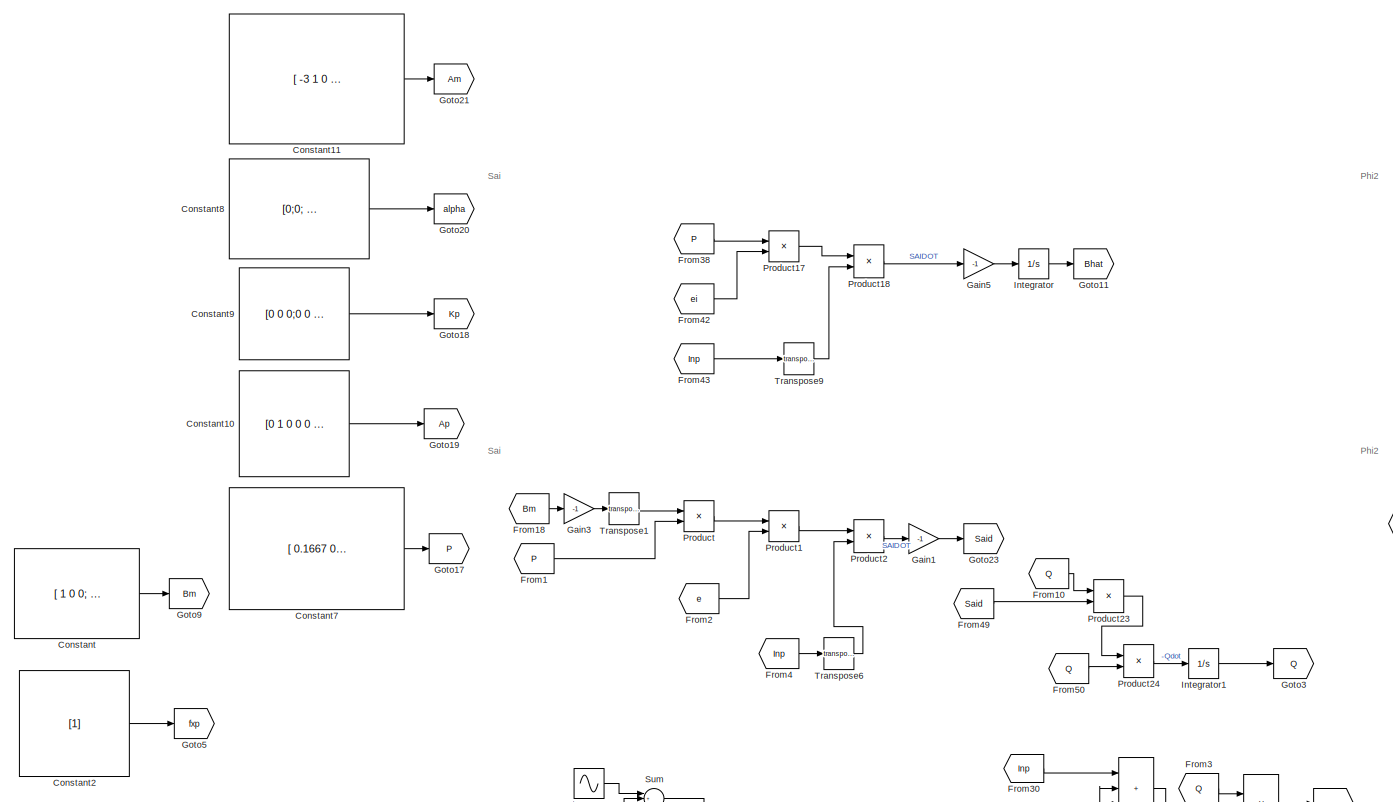
[diagram: root canvas - part 1/4, middle left region]
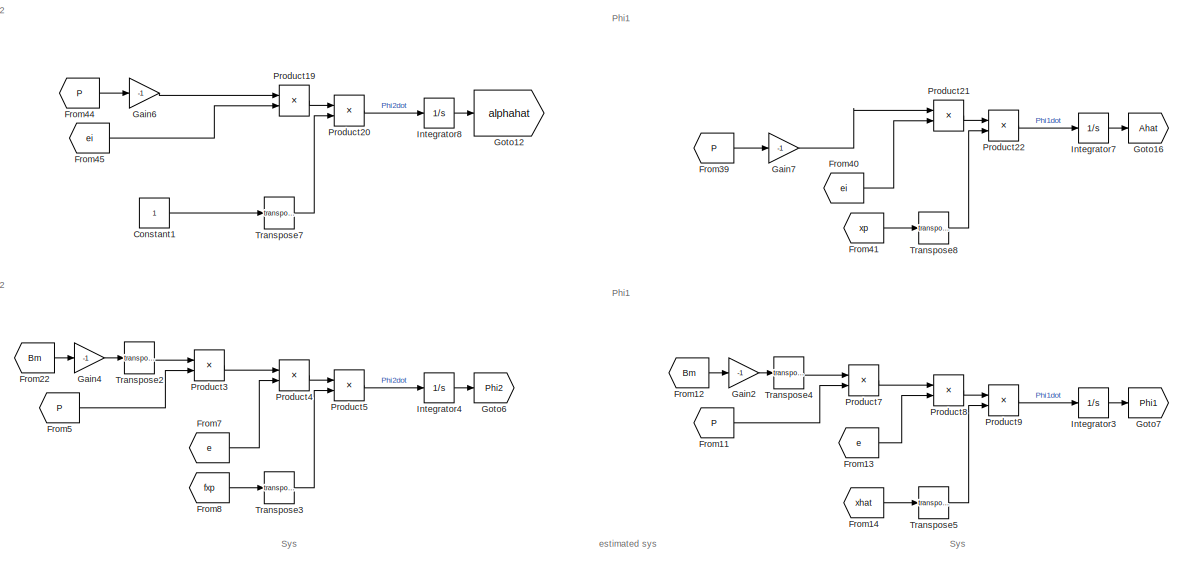
[diagram: root canvas - part 2/4, middle right region]
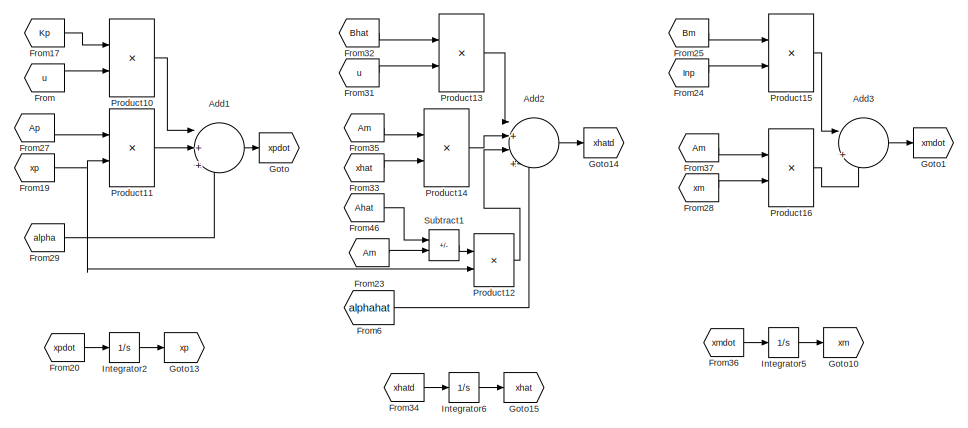
[diagram: root canvas - part 3/4, bottom right region]
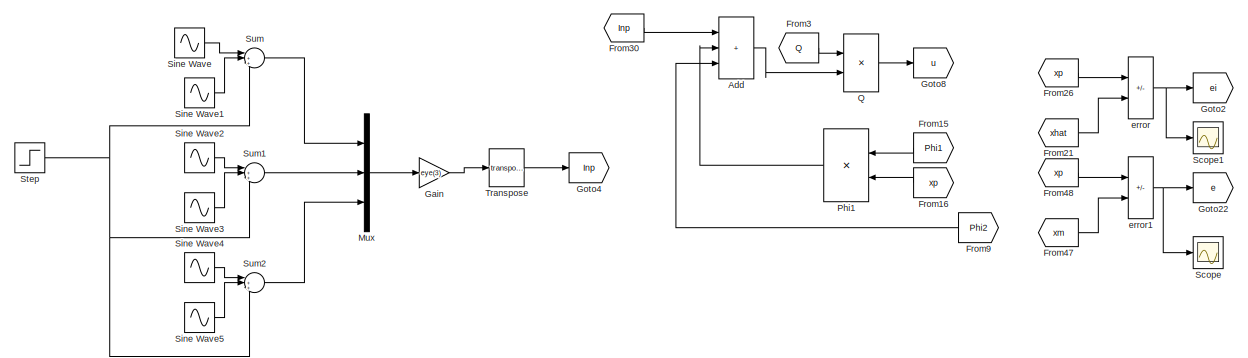
[diagram: root canvas - part 4/4, bottom center region]
MODEL slx_add6cd86e685
KIND model
CONFIG AbsTol = auto
CONFIG EnableMultiTasking = off
CONFIG FixedStep = auto
CONFIG MaxStep = 75e-6
CONFIG MinStep = auto
CONFIG RelTol = 1e-3
CONFIG SampleTimeConstraint = Unconstrained
CONFIG SolverName = VariableStepAuto
CONFIG StartTime = 0.0
CONFIG StopTime = 100.0
BLOCK [Sum] Add
  IconShape = rectangular
  Inputs = +++
BLOCK [Sum] Add1
  Inputs = |++|+
BLOCK [Sum] Add2
  Inputs = |+|+|+|+
BLOCK [Sum] Add3
  Inputs = |+|+
BLOCK [Constant] Constant
  Value = [ 1 0 0;\n           0 1 0;\n           0 0 1;\n           1 0 0;\n           0 1 0;\n           0 0 1 ];
BLOCK [Constant] Constant1
BLOCK [Constant] Constant10
  Value = [0 1 0 0 0 0;      0 0 0 0 0 0;\n      0 0 0 1 0 0;      0 0 0 0 0 0;\n      0 0 0 0 0 1;      0 0 0 0 0 0]
BLOCK [Constant] Constant11
  Value = [ -3  1  0  0  0  0;\n            0 -2  1  0  0  0;\n            0  0 -1  1  0  0;\n            0  0  0 -1  1  0;\n            0  0  0  0 -1  1;\n            0  0  0  0  0 -1 ]
BLOCK [Constant] Constant2
  Value = [1]
BLOCK [Constant] Constant7
  Value = [ 0.1667  0.0333  0.0083  0.0021  0.0005  0.0001;\n          0.0333  0.2667  0.0917  0.0312  0.0106  0.0036;\n          0.0083  0.0917  0.5917  0.3115  0.1610  0.0823;\n          0.0021  0.0312  0.3115  0.8115  0.4862  0.2843;\n          0.0005  0.0106  0.1610  0.4862  0.9862  0.6353;\n          0.0001  0.0036  0.0823  0.2843  0.6353  1.1353 ];
BLOCK [Constant] Constant8
  Value = [0;0;      0 ;\n      0 ;  -9.806 ;      0 ];
BLOCK [Constant] Constant9
  Value = [0 0 0;0 0 0;0 0 0 ;1/2.5 0 0  ; 0 1/2.5  0;0 0 1/0.03];
BLOCK [From] From
  GotoTag = u
BLOCK [From] From1
  GotoTag = P
BLOCK [From] From10
  GotoTag = Q
BLOCK [From] From11
  GotoTag = P
BLOCK [From] From12
  GotoTag = Bm
BLOCK [From] From13
  GotoTag = e
BLOCK [From] From14
  GotoTag = xhat
BLOCK [From] From15
  GotoTag = Phi1
  NameLocation = top
BLOCK [From] From16
  GotoTag = xp
  NameLocation = top
BLOCK [From] From17
  GotoTag = Kp
BLOCK [From] From18
  GotoTag = Bm
BLOCK [From] From19
  GotoTag = xp
BLOCK [From] From2
  GotoTag = e
BLOCK [From] From20
  GotoTag = xpdot
BLOCK [From] From21
  GotoTag = xhat
BLOCK [From] From22
  GotoTag = Bm
BLOCK [From] From23
  GotoTag = Am
BLOCK [From] From24
  GotoTag = Inp
BLOCK [From] From25
  GotoTag = Bm
BLOCK [From] From26
  GotoTag = xp
BLOCK [From] From27
  GotoTag = Ap
BLOCK [From] From28
  GotoTag = xm
BLOCK [From] From29
  GotoTag = alpha
BLOCK [From] From3
  GotoTag = Q
BLOCK [From] From30
  GotoTag = Inp
BLOCK [From] From31
  GotoTag = u
BLOCK [From] From32
  GotoTag = Bhat
BLOCK [From] From33
  GotoTag = xhat
BLOCK [From] From34
  GotoTag = xhatd
BLOCK [From] From35
  GotoTag = Am
BLOCK [From] From36
  GotoTag = xmdot
BLOCK [From] From37
  GotoTag = Am
BLOCK [From] From38
  GotoTag = P
BLOCK [From] From39
  GotoTag = P
BLOCK [From] From4
  GotoTag = Inp
BLOCK [From] From40
  GotoTag = ei
BLOCK [From] From41
  GotoTag = xp
BLOCK [From] From42
  GotoTag = ei
BLOCK [From] From43
  GotoTag = Inp
BLOCK [From] From44
  GotoTag = P
BLOCK [From] From45
  GotoTag = ei
BLOCK [From] From46
  GotoTag = Ahat
BLOCK [From] From47
  GotoTag = xm
BLOCK [From] From48
  GotoTag = xp
BLOCK [From] From49
  GotoTag = Said
BLOCK [From] From5
  GotoTag = P
BLOCK [From] From50
  GotoTag = Q
BLOCK [From] From6
  GotoTag = alphahat
BLOCK [From] From7
  GotoTag = e
BLOCK [From] From8
  GotoTag = fxp
BLOCK [From] From9
  GotoTag = Phi2
  NameLocation = top
BLOCK [Gain] Gain
  Gain = eye(3)
  Multiplication = Matrix(u*K)
BLOCK [Gain] Gain1
  Gain = -1
BLOCK [Gain] Gain2
  Gain = -1
BLOCK [Gain] Gain3
  Gain = -1
BLOCK [Gain] Gain4
  Gain = -1
BLOCK [Gain] Gain5
  Gain = -1
BLOCK [Gain] Gain6
  Gain = -1
BLOCK [Gain] Gain7
  Gain = -1
BLOCK [Goto] Goto
  GotoTag = xpdot
BLOCK [Goto] Goto1
  GotoTag = xmdot
BLOCK [Goto] Goto10
  GotoTag = xm
BLOCK [Goto] Goto11
  GotoTag = Bhat
BLOCK [Goto] Goto12
  GotoTag = alphahat
BLOCK [Goto] Goto13
  GotoTag = xp
BLOCK [Goto] Goto14
  GotoTag = xhatd
BLOCK [Goto] Goto15
  GotoTag = xhat
BLOCK [Goto] Goto16
  GotoTag = Ahat
BLOCK [Goto] Goto17
  GotoTag = P
BLOCK [Goto] Goto18
  GotoTag = Kp
BLOCK [Goto] Goto19
  GotoTag = Ap
BLOCK [Goto] Goto2
  GotoTag = ei
BLOCK [Goto] Goto20
  GotoTag = alpha
BLOCK [Goto] Goto21
  GotoTag = Am
BLOCK [Goto] Goto22
  GotoTag = e
BLOCK [Goto] Goto23
  GotoTag = Said
BLOCK [Goto] Goto3
  GotoTag = Q
BLOCK [Goto] Goto4
  GotoTag = Inp
BLOCK [Goto] Goto5
  GotoTag = fxp
BLOCK [Goto] Goto6
  GotoTag = Phi2
BLOCK [Goto] Goto7
  GotoTag = Phi1
BLOCK [Goto] Goto8
  GotoTag = u
BLOCK [Goto] Goto9
  GotoTag = Bm
BLOCK [Integrator] Integrator
BLOCK [Integrator] Integrator1
  IgnoreLimit = on
  InitialCondition = [0 0 0; 0 0 0; 0 0 0]
BLOCK [Integrator] Integrator2
  InitialCondition = [0 ;0; 0;0;0;0]
BLOCK [Integrator] Integrator3
BLOCK [Integrator] Integrator4
BLOCK [Integrator] Integrator5
  InitialCondition = [0.01;0.01;0.01;0.01;0.01;0.01;]
BLOCK [Integrator] Integrator6
  InitialCondition = [0; 0; 0;0;0;0]
BLOCK [Integrator] Integrator7
BLOCK [Integrator] Integrator8
BLOCK [Mux] Mux
  DisplayOption = bar
  Inputs = 3
BLOCK [Product] Phi1
  Multiplication = Matrix(*)
  NameLocation = top
BLOCK [Product] Product
  Multiplication = Matrix(*)
BLOCK [Product] Product1
  Multiplication = Matrix(*)
BLOCK [Product] Product10
  Multiplication = Matrix(*)
BLOCK [Product] Product11
  Multiplication = Matrix(*)
BLOCK [Product] Product12
  Multiplication = Matrix(*)
BLOCK [Product] Product13
  Multiplication = Matrix(*)
BLOCK [Product] Product14
  Multiplication = Matrix(*)
BLOCK [Product] Product15
  Multiplication = Matrix(*)
BLOCK [Product] Product16
  Multiplication = Matrix(*)
BLOCK [Product] Product17
  Multiplication = Matrix(*)
BLOCK [Product] Product18
  Multiplication = Matrix(*)
BLOCK [Product] Product19
  Multiplication = Matrix(*)
BLOCK [Product] Product2
  Multiplication = Matrix(*)
BLOCK [Product] Product20
  Multiplication = Matrix(*)
BLOCK [Product] Product21
  Multiplication = Matrix(*)
BLOCK [Product] Product22
  Multiplication = Matrix(*)
BLOCK [Product] Product23
  Multiplication = Matrix(*)
BLOCK [Product] Product24
  Multiplication = Matrix(*)
BLOCK [Product] Product3
  Multiplication = Matrix(*)
BLOCK [Product] Product4
  Multiplication = Matrix(*)
BLOCK [Product] Product5
  Multiplication = Matrix(*)
BLOCK [Product] Product7
  Multiplication = Matrix(*)
BLOCK [Product] Product8
  Multiplication = Matrix(*)
BLOCK [Product] Product9
  Multiplication = Matrix(*)
BLOCK [Product] Q
  Multiplication = Matrix(*)
BLOCK [Scope] Scope
  Floating = off
  NumInputPorts = 1
  ScopeSpecificationString = Simulink.scopes.TimeScopeBlockCfg('CurrentConfiguration', extmgr.ConfigurationSet(extmgr.Configuration('Core','General UI',true),extmgr.Configuration('Core','Source UI',true),extmgr.Configuration('Sources','WiredSimulink',true),extmgr.Configuration('Visuals','Time Domain',true,'SerializedDisplays',{struct('MinYLimReal','-1110.58642','MaxYLimReal','123.38738','YLabelReal','','MinYLimMag','  0.00000...<+1502ch>
BLOCK [Scope] Scope1
  Floating = off
  NumInputPorts = 1
  ScopeSpecificationString = Simulink.scopes.TimeScopeBlockCfg('CurrentConfiguration', extmgr.ConfigurationSet(extmgr.Configuration('Core','General UI',true),extmgr.Configuration('Core','Source UI',true),extmgr.Configuration('Sources','WiredSimulink',true,'DataLoggingVariableName','ScopeData1'),extmgr.Configuration('Visuals','Time Domain',true,'SerializedDisplays',{struct('MinYLimReal','-2.91221','MaxYLimReal','3.22481','YLab...<+1416ch>
BLOCK [Sin] Sine Wave
  Frequency = 2
  SampleTime = 0
BLOCK [Sin] Sine Wave1
  Amplitude = 3
  Frequency = 4
  SampleTime = 0
BLOCK [Sin] Sine Wave2
  Amplitude = 2
  Frequency = 4
  SampleTime = 0
BLOCK [Sin] Sine Wave3
  Amplitude = 3
  Frequency = 6
  SampleTime = 0
BLOCK [Sin] Sine Wave4
  Amplitude = 3
  Frequency = 9
  SampleTime = 0
BLOCK [Sin] Sine Wave5
  Amplitude = 4
  Frequency = 12
  SampleTime = 0
BLOCK [Step] Step
  After = 3
  Before = 2
  SampleTime = 0
BLOCK [Sum] Subtract1
  IconShape = rectangular
  Inputs = +-
BLOCK [Sum] Sum
  Inputs = |+++
BLOCK [Sum] Sum1
  Inputs = |+++
BLOCK [Sum] Sum2
  Inputs = |+++
BLOCK [Math] Transpose
  Operator = transpose
BLOCK [Math] Transpose1
  Operator = transpose
BLOCK [Math] Transpose2
  Operator = transpose
BLOCK [Math] Transpose3
  Operator = transpose
BLOCK [Math] Transpose4
  Operator = transpose
BLOCK [Math] Transpose5
  Operator = transpose
BLOCK [Math] Transpose6
  Operator = transpose
BLOCK [Math] Transpose7
  Operator = transpose
BLOCK [Math] Transpose8
  Operator = transpose
BLOCK [Math] Transpose9
  Operator = transpose
BLOCK [Sum] error
  IconShape = rectangular
  Inputs = -+
BLOCK [Sum] error1
  IconShape = rectangular
  Inputs = +-
ANNOTATION (root): Phi1
ANNOTATION (root): Phi2
ANNOTATION (root): Sai
ANNOTATION (root): Sys
ANNOTATION (root): estimated sys
LINE Add1:1 -> Goto:1
LINE Add2:1 -> Goto14:1
LINE Add3:1 -> Goto1:1
LINE Add:1 -> Q:2
LINE Constant10:1 -> Goto19:1
LINE Constant11:1 -> Goto21:1
LINE Constant1:1 -> Transpose7:1
LINE Constant2:1 -> Goto5:1
LINE Constant7:1 -> Goto17:1
LINE Constant8:1 -> Goto20:1
LINE Constant9:1 -> Goto18:1
LINE Constant:1 -> Goto9:1
LINE From10:1 -> Product23:1
LINE From11:1 -> Product7:2
LINE From12:1 -> Gain2:1
LINE From13:1 -> Product8:2
LINE From14:1 -> Transpose5:1
LINE From15:1 -> Phi1:1
LINE From16:1 -> Phi1:2
LINE From17:1 -> Product10:1
LINE From18:1 -> Gain3:1
NET From19:1 -> Product11:2, Product12:2
LINE From1:1 -> Product:2
LINE From20:1 -> Integrator2:1
LINE From21:1 -> error:2
LINE From22:1 -> Gain4:1
LINE From23:1 -> Subtract1:2
LINE From24:1 -> Product15:2
LINE From25:1 -> Product15:1
LINE From26:1 -> error:1
LINE From27:1 -> Product11:1
LINE From28:1 -> Product16:2
LINE From29:1 -> Add1:3
LINE From2:1 -> Product1:2
LINE From30:1 -> Add:1
LINE From31:1 -> Product13:2
LINE From32:1 -> Product13:1
LINE From33:1 -> Product14:2
LINE From34:1 -> Integrator6:1
LINE From35:1 -> Product14:1
LINE From36:1 -> Integrator5:1
LINE From37:1 -> Product16:1
LINE From38:1 -> Product17:1
LINE From39:1 -> Gain7:1
LINE From3:1 -> Q:1
LINE From40:1 -> Product21:2
LINE From41:1 -> Transpose8:1
LINE From42:1 -> Product17:2
LINE From43:1 -> Transpose9:1
LINE From44:1 -> Gain6:1
LINE From45:1 -> Product19:2
LINE From46:1 -> Subtract1:1
LINE From47:1 -> error1:2
LINE From48:1 -> error1:1
LINE From49:1 -> Product23:2
LINE From4:1 -> Transpose6:1
LINE From50:1 -> Product24:2
LINE From5:1 -> Product3:2
LINE From6:1 -> Add2:4
LINE From7:1 -> Product4:2
LINE From8:1 -> Transpose3:1
LINE From9:1 -> Add:3
LINE From:1 -> Product10:2
LINE Gain1:1 -> Goto23:1
LINE Gain2:1 -> Transpose4:1
LINE Gain3:1 -> Transpose1:1
LINE Gain4:1 -> Transpose2:1
LINE Gain5:1 -> Integrator:1
LINE Gain6:1 -> Product19:1
LINE Gain7:1 -> Product21:1
LINE Gain:1 -> Transpose:1
LINE Integrator1:1 -> Goto3:1
LINE Integrator2:1 -> Goto13:1
LINE Integrator3:1 -> Goto7:1
LINE Integrator4:1 -> Goto6:1
LINE Integrator5:1 -> Goto10:1
LINE Integrator6:1 -> Goto15:1
LINE Integrator7:1 -> Goto16:1
LINE Integrator8:1 -> Goto12:1
LINE Integrator:1 -> Goto11:1
LINE Mux:1 -> Gain:1
LINE Phi1:1 -> Add:2
LINE Product10:1 -> Add1:1
LINE Product11:1 -> Add1:2
LINE Product12:1 -> Add2:3
LINE Product13:1 -> Add2:1
LINE Product14:1 -> Add2:2
LINE Product15:1 -> Add3:1
LINE Product16:1 -> Add3:2
LINE Product17:1 -> Product18:1
LINE Product18:1 -> Gain5:1
LINE Product19:1 -> Product20:1
LINE Product1:1 -> Product2:1
LINE Product20:1 -> Integrator8:1
LINE Product21:1 -> Product22:1
LINE Product22:1 -> Integrator7:1
LINE Product23:1 -> Product24:1
LINE Product24:1 -> Integrator1:1
LINE Product2:1 -> Gain1:1
LINE Product3:1 -> Product4:1
LINE Product4:1 -> Product5:1
LINE Product5:1 -> Integrator4:1
LINE Product7:1 -> Product8:1
LINE Product8:1 -> Product9:1
LINE Product9:1 -> Integrator3:1
LINE Product:1 -> Product1:1
LINE Q:1 -> Goto8:1
LINE Sine Wave1:1 -> Sum:2
LINE Sine Wave2:1 -> Sum1:1
LINE Sine Wave3:1 -> Sum1:2
LINE Sine Wave4:1 -> Sum2:1
LINE Sine Wave5:1 -> Sum2:2
LINE Sine Wave:1 -> Sum:1
NET Step:1 -> Sum1:3, Sum2:3, Sum:3
LINE Subtract1:1 -> Product12:1
LINE Sum1:1 -> Mux:2
LINE Sum2:1 -> Mux:3
LINE Sum:1 -> Mux:1
LINE Transpose1:1 -> Product:1
LINE Transpose2:1 -> Product3:1
LINE Transpose3:1 -> Product5:2
LINE Transpose4:1 -> Product7:1
LINE Transpose5:1 -> Product9:2
LINE Transpose6:1 -> Product2:2
LINE Transpose7:1 -> Product20:2
LINE Transpose8:1 -> Product22:2
LINE Transpose9:1 -> Product18:2
LINE Transpose:1 -> Goto4:1
NET error1:1 -> Goto22:1, Scope:1
NET error:1 -> Goto2:1, Scope1:1
note: NET lines group one-source signal fan-out (src -> all destinations, sorted); 1:1 wires keep LINE
